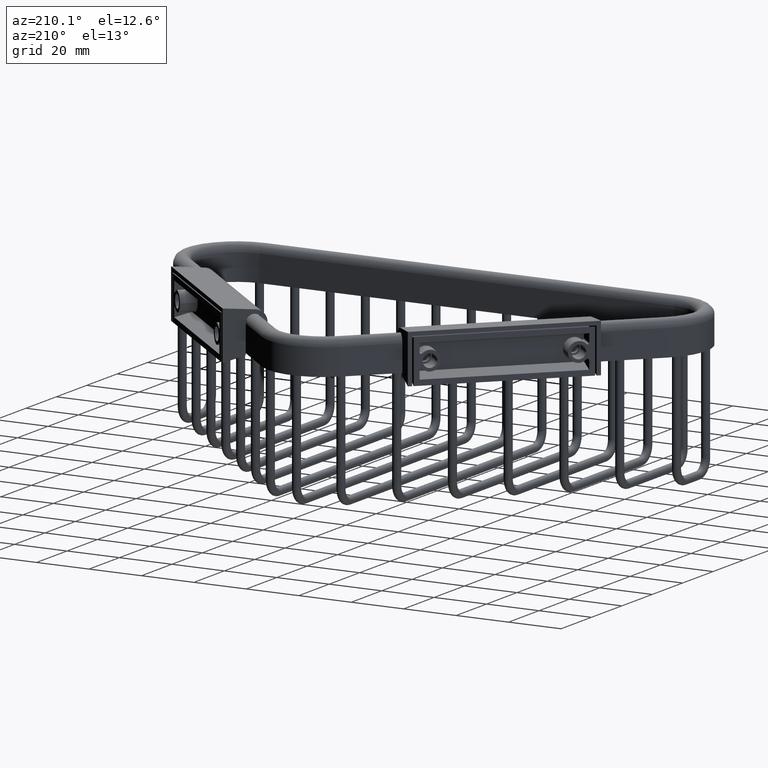
[diagram: clean part render]
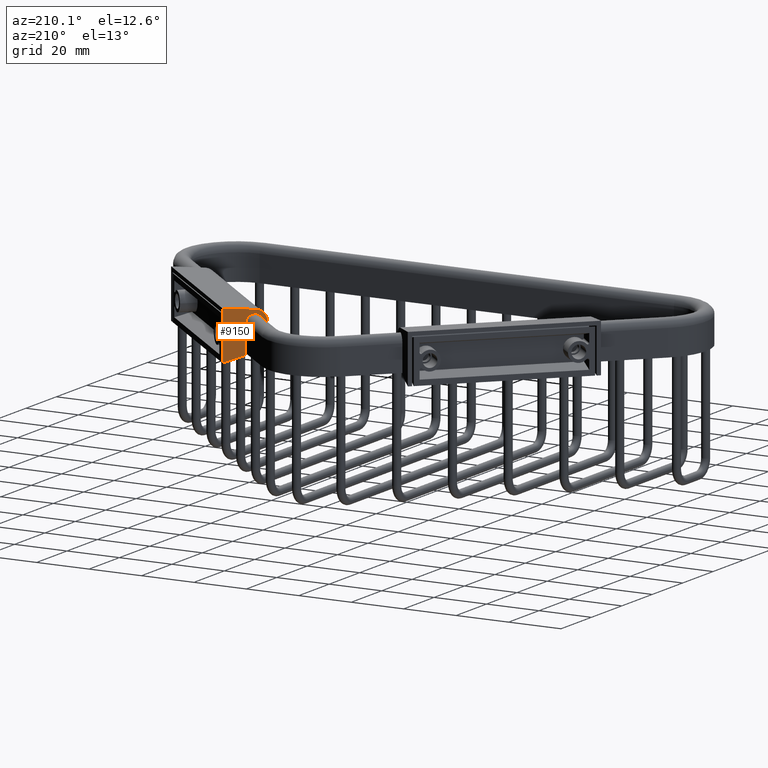
[diagram: same view with one face highlighted and labeled with its STEP entity id]
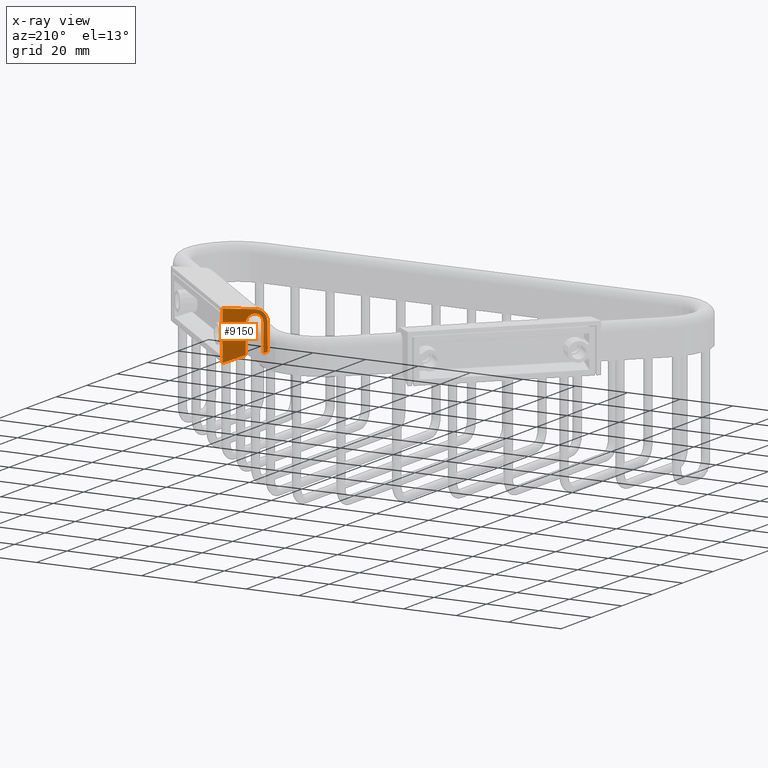
[diagram: x-ray of the same camera — body ghosted, the highlighted face saturated]
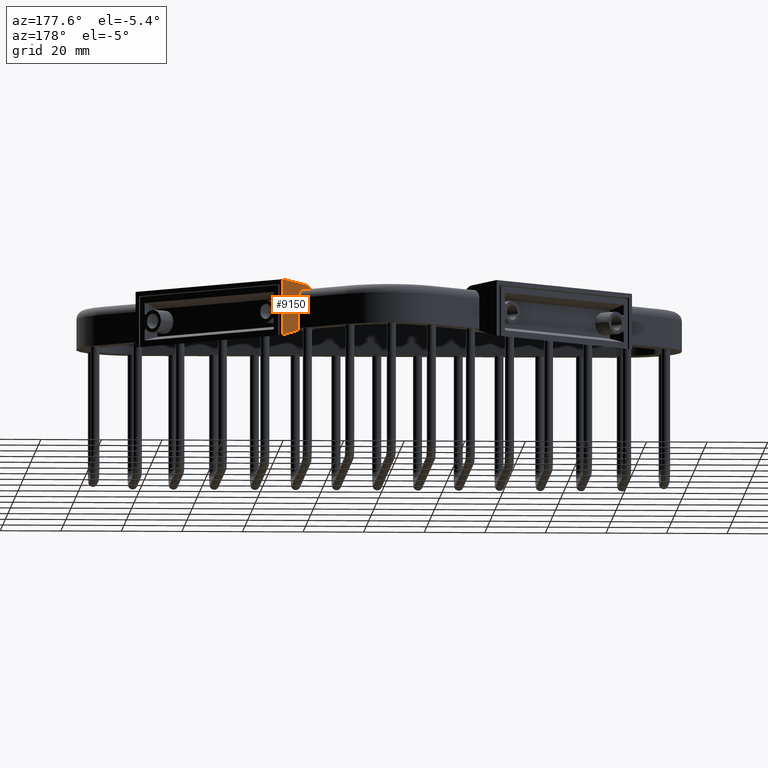
[diagram: same view with one face highlighted and labeled with its STEP entity id]
A machine part, auxiliary view. The second image highlights one B-rep face of the part: STEP entity #9150.
The next image is the same camera in x-ray: the body ghosted, the highlighted face saturated — about 1% of this face is hidden behind the body in this view.
A second angle (auxiliary view) of the same face is appended — the face is thin or edge-on in the first view.
In plain terms, the highlighted planar face has unit normal (0.7314, -0.682, 0).
Its self-contained STEP definition (entity closure, byte-faithful):
#8712=DIRECTION('',(-4.616127366168E-5,1.936115898323E-3,9.999981246604E-1));
#8713=VECTOR('',#8712,3.906598088590E-2);
#8714=CARTESIAN_POINT('',(-1.279751442668E0,-2.461652457356E-1,
-2.647379336011E-1));
#8715=LINE('',#8714,#8713);
#8756=DIRECTION('',(0.E0,3.367809322843E-10,-1.E0));
#8757=VECTOR('',#8756,7.259232390876E-1);
#8758=CARTESIAN_POINT('',(-1.299E0,3.05E-1,3.64E-1));
#8759=LINE('',#8758,#8757);
#8760=DIRECTION('',(-3.476571851842E-2,9.955599210576E-1,8.747450142599E-2));
#8761=VECTOR('',#8760,4.504925746333E-1);
#8762=CARTESIAN_POINT('',(-1.283338301956E0,-1.434923520389E-1,
3.245933866378E-1));
#8763=LINE('',#8762,#8761);
#8764=DIRECTION('',(0.E0,0.E0,1.E0));
#8765=VECTOR('',#8764,4.026364747016E-1);
#8766=CARTESIAN_POINT('',(-1.277698330610E0,-3.05E-1,-2.543637817678E-1));
#8767=LINE('',#8766,#8765);
#8768=DIRECTION('',(3.434581817939E-2,-9.842267325111E-1,1.735456821245E-1));
#8769=VECTOR('',#8768,5.977764301761E-2);
#8770=CARTESIAN_POINT('',(-1.279751442668E0,-2.461652457356E-1,
-2.647379336011E-1));
#8771=LINE('',#8770,#8769);
#8780=DIRECTION('',(-3.371170046711E-2,9.653767939254E-1,-2.586719292887E-1));
#8781=VECTOR('',#8780,3.262974646030E-1);
#8782=CARTESIAN_POINT('',(-1.287999957610E0,-1.E-2,-2.775192443967E-1));
#8783=LINE('',#8782,#8781);
#8842=CARTESIAN_POINT('',(-1.279758656010E0,-2.46E-1,1.482726929337E-1));
#8843=CARTESIAN_POINT('',(-1.279758656010E0,-2.46E-1,1.621791262971E-1));
#8844=CARTESIAN_POINT('',(-1.279934455976E0,-2.409657476519E-1,
1.922203598951E-1));
#8845=CARTESIAN_POINT('',(-1.280879263490E0,-2.139100003707E-1,
2.342072628938E-1));
#8846=CARTESIAN_POINT('',(-1.282098119067E0,-1.790065433497E-1,
2.567164998256E-1));
#8847=CARTESIAN_POINT('',(-1.283135084133E0,-1.493117490813E-1,
2.650319851124E-1));
#8848=CARTESIAN_POINT('',(-1.283879306810E0,-1.28E-1,2.668930468444E-1));
#8849=CARTESIAN_POINT('',(-1.284623529487E0,-1.066882509187E-1,
2.650319851124E-1));
#8850=CARTESIAN_POINT('',(-1.285660494553E0,-7.699345665029E-2,
2.567164998256E-1));
#8851=CARTESIAN_POINT('',(-1.286879350130E0,-4.208999962932E-2,
2.342072628938E-1));
#8852=CARTESIAN_POINT('',(-1.287824157644E0,-1.503425234814E-2,
1.922203598951E-1));
#8853=CARTESIAN_POINT('',(-1.287999957610E0,-1.E-2,1.621791262971E-1));
#8854=CARTESIAN_POINT('',(-1.287999957610E0,-1.E-2,1.482726929337E-1));
#8860=DIRECTION('',(-1.446739550915E-5,2.396329237283E-4,9.999999711834E-1));
#8861=VECTOR('',#8860,3.739447296868E-1);
#8862=CARTESIAN_POINT('',(-1.279753246004E0,-2.460896094689E-1,
-2.256720259772E-1));
#8863=LINE('',#8862,#8861);
#8938=CARTESIAN_POINT('',(-1.283338301956E0,-1.434923520389E-1,
3.245933866378E-1));
#8939=CARTESIAN_POINT('',(-1.282868446403E0,-1.569472546591E-1,
3.234111766337E-1));
#8940=CARTESIAN_POINT('',(-1.282032014923E0,-1.808995183599E-1,
3.183358880871E-1));
#8941=CARTESIAN_POINT('',(-1.280621736928E0,-2.212845962254E-1,
3.012930192374E-1));
#8942=CARTESIAN_POINT('',(-1.279238574095E0,-2.608931974401E-1,
2.700235256881E-1));
#8943=CARTESIAN_POINT('',(-1.278271521387E0,-2.885859637384E-1,
2.278320344085E-1));
#8944=CARTESIAN_POINT('',(-1.277801785868E0,-3.020374290283E-1,
1.861019441027E-1));
#8945=CARTESIAN_POINT('',(-1.277698330610E0,-3.05E-1,1.617876028207E-1));
#8946=CARTESIAN_POINT('',(-1.277698330610E0,-3.05E-1,1.482726929337E-1));
#8960=DIRECTION('',(0.E0,0.E0,-1.E0));
#8961=VECTOR('',#8960,4.257919373305E-1);
#8962=CARTESIAN_POINT('',(-1.287999957610E0,-1.E-2,1.482726929337E-1));
#8963=LINE('',#8962,#8961);
#8972=CARTESIAN_POINT('',(-1.279753246004E0,-2.460896094689E-1,
-2.256720259772E-1));
#8973=VERTEX_POINT('',#8972);
#8982=CARTESIAN_POINT('',(-1.279751442668E0,-2.461652457356E-1,
-2.647379336011E-1));
#8983=VERTEX_POINT('',#8982);
#8985=CARTESIAN_POINT('',(-1.279758656010E0,-2.46E-1,1.482726929337E-1));
#8987=VERTEX_POINT('',#8985);
#8992=CARTESIAN_POINT('',(-1.287999957610E0,-1.E-2,-2.775192443967E-1));
#8993=VERTEX_POINT('',#8992);
#8994=CARTESIAN_POINT('',(-1.299E0,3.050000002445E-1,-3.619232390876E-1));
#8995=VERTEX_POINT('',#8994);
#8998=CARTESIAN_POINT('',(-1.287999957610E0,-1.E-2,1.482726929337E-1));
#8999=VERTEX_POINT('',#8998);
#9018=CARTESIAN_POINT('',(-1.277698330610E0,-3.05E-1,-2.543637817678E-1));
#9019=VERTEX_POINT('',#9018);
#9020=CARTESIAN_POINT('',(-1.277698330610E0,-3.05E-1,1.482726929337E-1));
#9021=VERTEX_POINT('',#9020);
#9022=VERTEX_POINT('',#8938);
#9023=CARTESIAN_POINT('',(-1.299E0,3.05E-1,3.64E-1));
#9024=VERTEX_POINT('',#9023);
#9125=CARTESIAN_POINT('',(-1.276999915220E0,-3.250000000011E-1,
-2.972730781684E-2));
#9126=DIRECTION('',(9.993908270191E-1,3.489949670250E-2,0.E0));
#9127=DIRECTION('',(0.E0,0.E0,-1.E0));
#9128=AXIS2_PLACEMENT_3D('',#9125,#9126,#9127);
#9129=PLANE('',#9128);
#9131=ORIENTED_EDGE('',*,*,#9130,.T.);
#9133=ORIENTED_EDGE('',*,*,#9132,.F.);
#9135=ORIENTED_EDGE('',*,*,#9134,.F.);
#9137=ORIENTED_EDGE('',*,*,#9136,.T.);
#9139=ORIENTED_EDGE('',*,*,#9138,.F.);
#9140=ORIENTED_EDGE('',*,*,#9114,.F.);
#9141=ORIENTED_EDGE('',*,*,#9070,.T.);
#9143=ORIENTED_EDGE('',*,*,#9142,.T.);
#9145=ORIENTED_EDGE('',*,*,#9144,.T.);
#9147=ORIENTED_EDGE('',*,*,#9146,.T.);
#9148=EDGE_LOOP('',(#9131,#9133,#9135,#9137,#9139,#9140,#9141,#9143,#9145,
#9147));
#9149=FACE_OUTER_BOUND('',#9148,.F.);
#8855=B_SPLINE_CURVE_WITH_KNOTS('',3,(#8842,#8843,#8844,#8845,#8846,#8847,#8848,
#8849,#8850,#8851,#8852,#8853,#8854),.UNSPECIFIED.,.F.,.F.,(4,1,1,1,1,1,1,1,1,1,
4),(0.E0,1.25E-1,2.5E-1,3.75E-1,4.375E-1,5.E-1,5.625E-1,6.25E-1,7.5E-1,8.75E-1,
1.E0),.UNSPECIFIED.);
#8947=B_SPLINE_CURVE_WITH_KNOTS('',3,(#8938,#8939,#8940,#8941,#8942,#8943,#8944,
#8945,#8946),.UNSPECIFIED.,.F.,.F.,(4,1,1,1,1,1,4),(0.E0,1.25E-1,2.5E-1,5.E-1,
7.5E-1,8.75E-1,1.E0),.UNSPECIFIED.);
#9070=EDGE_CURVE('',#8983,#8973,#8715,.T.);
#9114=EDGE_CURVE('',#8983,#9019,#8771,.T.);
#9130=EDGE_CURVE('',#8993,#8995,#8783,.T.);
#9132=EDGE_CURVE('',#9024,#8995,#8759,.T.);
#9134=EDGE_CURVE('',#9022,#9024,#8763,.T.);
#9136=EDGE_CURVE('',#9022,#9021,#8947,.T.);
#9138=EDGE_CURVE('',#9019,#9021,#8767,.T.);
#9142=EDGE_CURVE('',#8973,#8987,#8863,.T.);
#9144=EDGE_CURVE('',#8987,#8999,#8855,.T.);
#9146=EDGE_CURVE('',#8999,#8993,#8963,.T.);
#9150=ADVANCED_FACE('',(#9149),#9129,.F.);